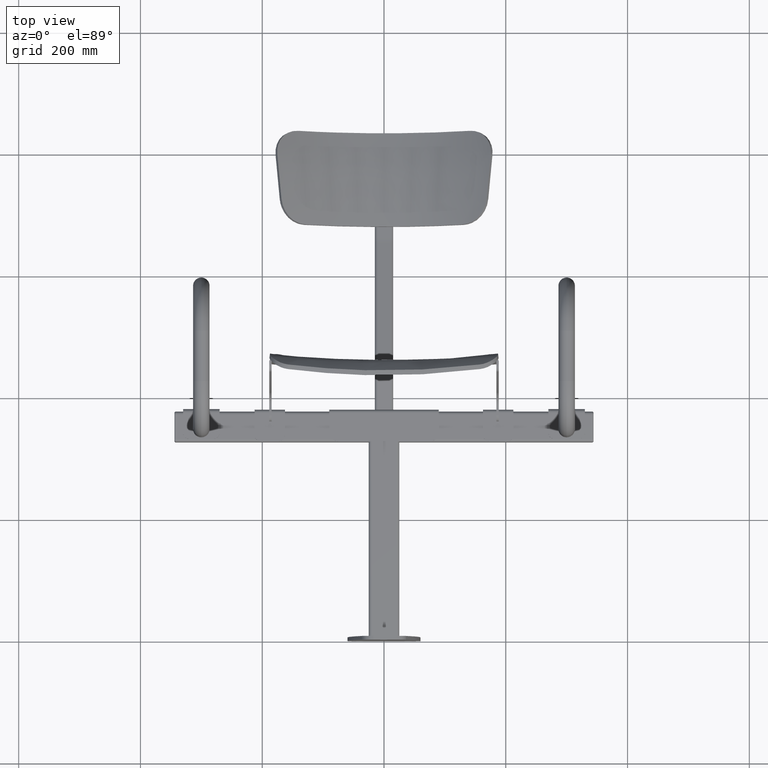
[diagram: clean part render]
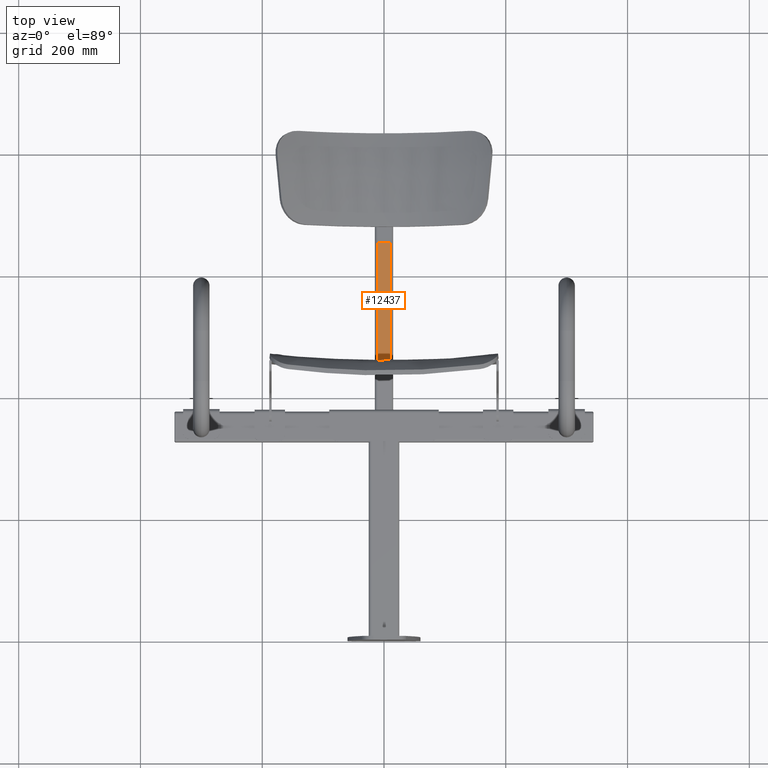
[diagram: same view with one face highlighted and labeled with its STEP entity id]
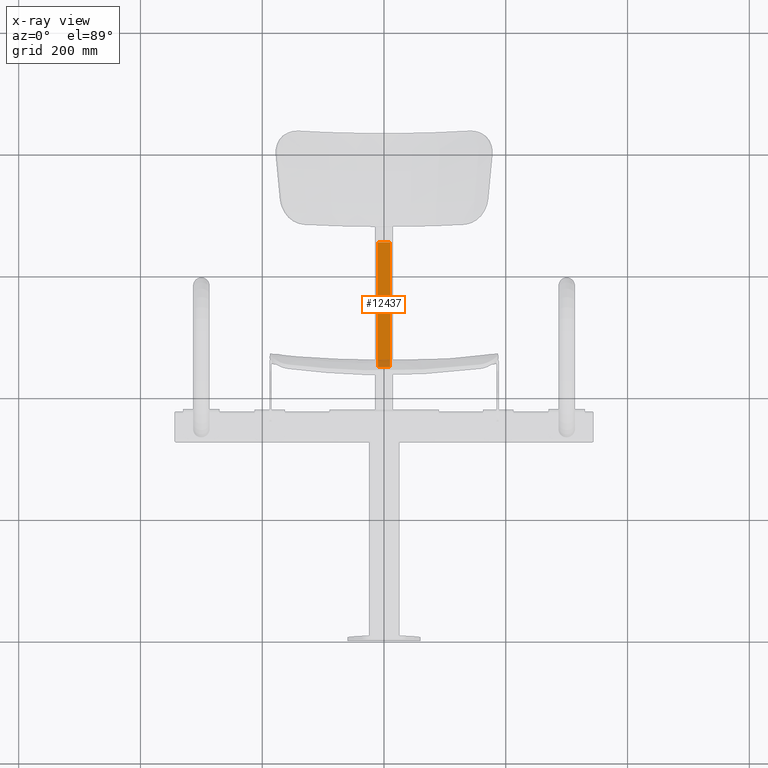
[diagram: x-ray of the same camera — body ghosted, the highlighted face saturated]
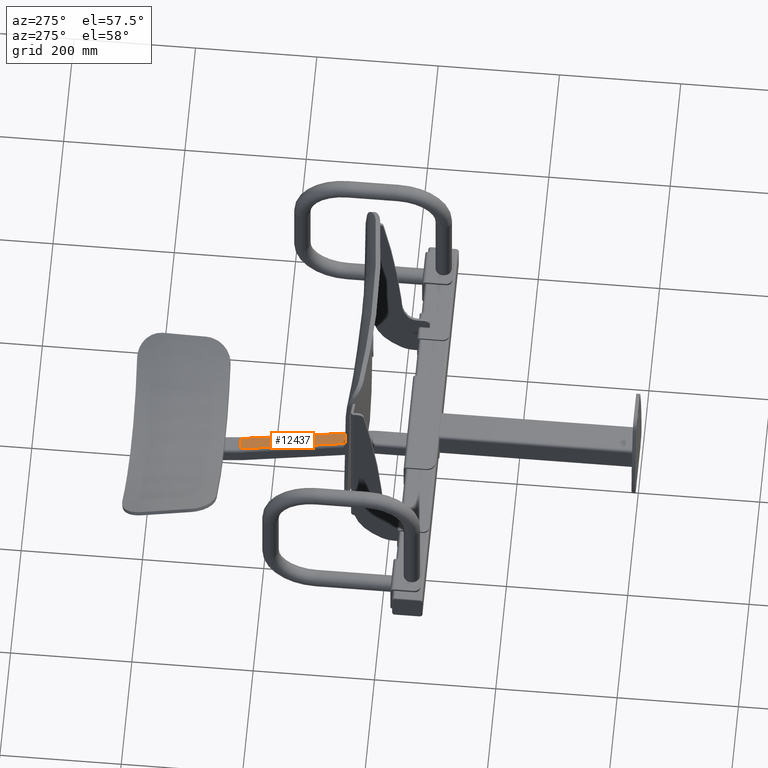
[diagram: same view with one face highlighted and labeled with its STEP entity id]
A machine part, top view. The second image highlights one B-rep face of the part: STEP entity #12437.
The next image is the same camera in x-ray: the body ghosted, the highlighted face saturated — about 6% of this face is hidden behind the body in this view.
A second angle (auxiliary view) of the same face is appended — the face is thin or edge-on in the first view.
In plain terms, the highlighted planar face has unit normal (0, 0.225, 0.9744).
Its self-contained STEP definition (entity closure, byte-faithful):
#189 = FACE_OUTER_BOUND ( 'NONE', #5361, .T. ) ;
#1655 = ORIENTED_EDGE ( 'NONE', *, *, #4167, .T. ) ;
#1656 = ORIENTED_EDGE ( 'NONE', *, *, #4166, .T. ) ;
#1657 = ORIENTED_EDGE ( 'NONE', *, *, #4165, .T. ) ;
#1658 = ORIENTED_EDGE ( 'NONE', *, *, #4164, .T. ) ;
#4164 = EDGE_CURVE ( 'NONE', #7611, #7631, #17978, .T. ) ;
#4165 = EDGE_CURVE ( 'NONE', #7631, #5338, #17976, .T. ) ;
#4166 = EDGE_CURVE ( 'NONE', #5338, #5303, #17982, .T. ) ;
#4167 = EDGE_CURVE ( 'NONE', #5303, #7611, #17984, .T. ) ;
#5303 = VERTEX_POINT ( 'NONE', #15573 ) ;
#5338 = VERTEX_POINT ( 'NONE', #15608 ) ;
#5361 = EDGE_LOOP ( 'NONE', ( #1658, #1657, #1656, #1655 ) ) ;
#5658 = CARTESIAN_POINT ( 'NONE',  ( 10.00000000000000000, 328.6331146507946500, -103.0136953173258300 ) ) ;
#5678 = CARTESIAN_POINT ( 'NONE',  ( -10.00000000000000200, 328.6331146507946500, -103.0136953173258300 ) ) ;
#7611 = VERTEX_POINT ( 'NONE', #5658 ) ;
#7631 = VERTEX_POINT ( 'NONE', #5678 ) ;
#12437 = ADVANCED_FACE ( 'NONE', ( #189 ), #20778, .T. ) ;
#14970 = AXIS2_PLACEMENT_3D ( 'NONE', #20779, #20784, #20785 ) ;
#15452 = CARTESIAN_POINT ( 'NONE',  ( -10.00000000000000000, 112.0000000000000000, -53.00000000000001400 ) ) ;
#15458 = CARTESIAN_POINT ( 'NONE',  ( -15.00000000000000200, 328.6331146507946500, -103.0136953173258300 ) ) ;
#15460 = DIRECTION ( 'NONE',  ( -1.000000000000000000, 0.0000000000000000000, 0.0000000000000000000 ) ) ;
#15461 = DIRECTION ( 'NONE',  ( -0.0000000000000000000, -0.9743700647852350200, 0.2249510543438655000 ) ) ;
#15462 = CARTESIAN_POINT ( 'NONE',  ( 15.00000000000000200, 123.1015446042218400, -55.56299352147647100 ) ) ;
#15463 = DIRECTION ( 'NONE',  ( 1.000000000000000000, -0.0000000000000000000, -0.0000000000000000000 ) ) ;
#15464 = CARTESIAN_POINT ( 'NONE',  ( 10.00000000000000200, 328.6331146507947700, -103.0136953173258500 ) ) ;
#15465 = DIRECTION ( 'NONE',  ( 0.0000000000000000000, 0.9743700647852350200, -0.2249510543438655000 ) ) ;
#15573 = CARTESIAN_POINT ( 'NONE',  ( 10.00000000000000200, 123.1015446042218400, -55.56299352147647100 ) ) ;
#15608 = CARTESIAN_POINT ( 'NONE',  ( -10.00000000000000000, 123.1015446042218400, -55.56299352147647100 ) ) ;
#17976 = LINE ( 'NONE', #15452, #17983 ) ;
#17978 = LINE ( 'NONE', #15458, #17981 ) ;
#17981 = VECTOR ( 'NONE', #15460, 1000.000000000000000 ) ;
#17982 = LINE ( 'NONE', #15462, #17985 ) ;
#17983 = VECTOR ( 'NONE', #15461, 1000.000000000000100 ) ;
#17984 = LINE ( 'NONE', #15464, #17987 ) ;
#17985 = VECTOR ( 'NONE', #15463, 1000.000000000000000 ) ;
#17987 = VECTOR ( 'NONE', #15465, 1000.000000000000100 ) ;
#20778 = PLANE ( 'NONE',  #14970 ) ;
#20779 = CARTESIAN_POINT ( 'NONE',  ( 15.00000000000000200, 112.0000000000000000, -53.00000000000001400 ) ) ;
#20784 = DIRECTION ( 'NONE',  ( -0.0000000000000000000, 0.2249510543438655300, 0.9743700647852351300 ) ) ;
#20785 = DIRECTION ( 'NONE',  ( 0.0000000000000000000, -0.9743700647852350200, 0.2249510543438655000 ) ) ;